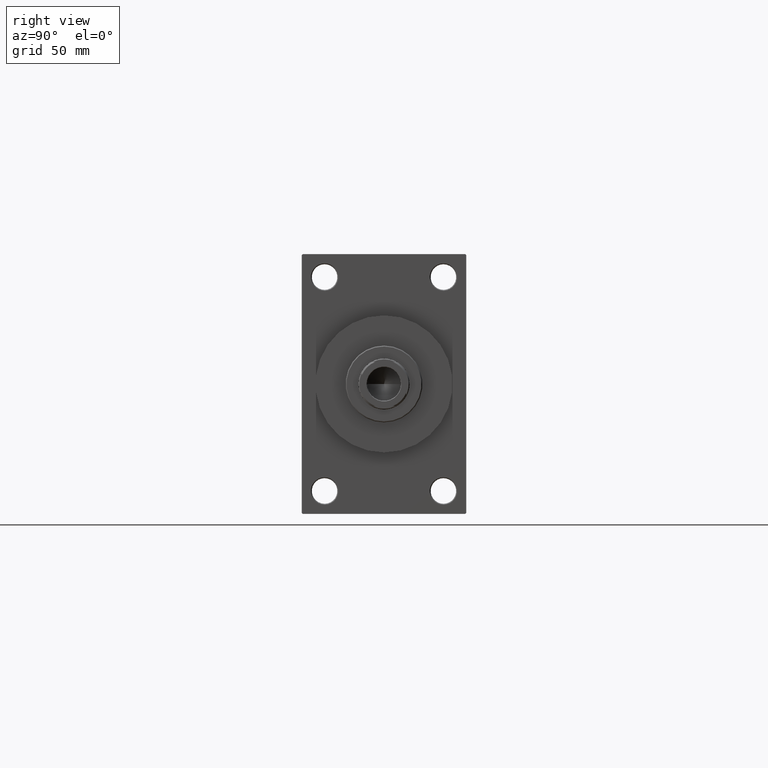
[diagram: clean part render]
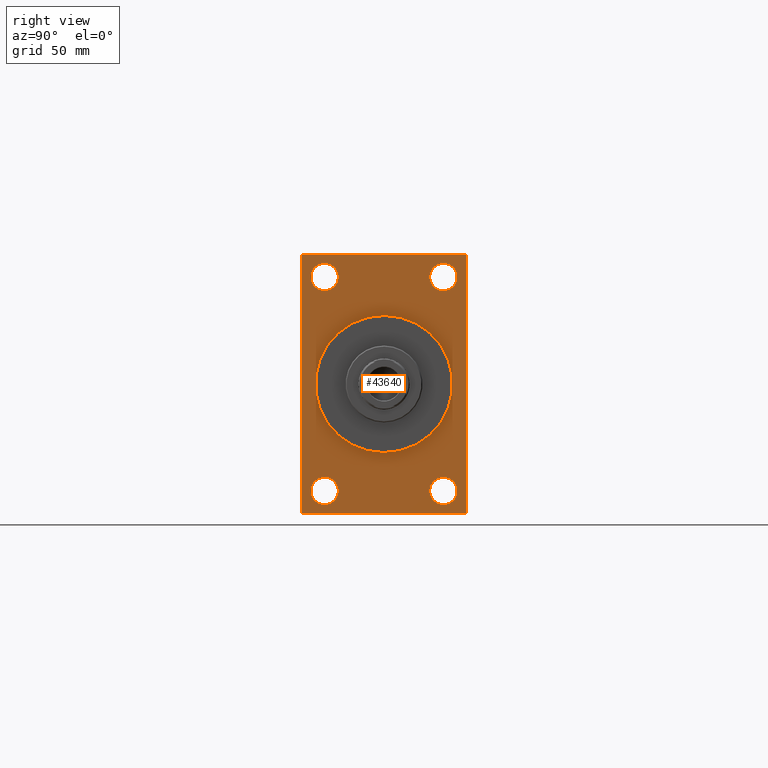
[diagram: same view with one face highlighted and labeled with its STEP entity id]
A machine part, right view. The second image highlights one B-rep face of the part: STEP entity #43640.
In plain terms, the highlighted planar face has unit normal (-1, 0, 0).
Its self-contained STEP definition (entity closure, byte-faithful):
#114 = LINE ( 'NONE', #28977, #6541 ) ;
#276 = EDGE_CURVE ( 'NONE', #22628, #3264, #12147, .T. ) ;
#327 = EDGE_CURVE ( 'NONE', #12307, #39386, #24061, .T. ) ;
#462 = VERTEX_POINT ( 'NONE', #21406 ) ;
#594 = EDGE_CURVE ( 'NONE', #1462, #31161, #26250, .T. ) ;
#1154 = DIRECTION ( 'NONE',  ( 0.000000000000000000, -4.886545002751570165E-17, -1.000000000000000000 ) ) ;
#1462 = VERTEX_POINT ( 'NONE', #43817 ) ;
#1562 = DIRECTION ( 'NONE',  ( 0.000000000000000000, 0.000000000000000000, 1.000000000000000000 ) ) ;
#1807 = DIRECTION ( 'NONE',  ( 0.000000000000000000, 0.000000000000000000, 1.000000000000000000 ) ) ;
#2076 = VECTOR ( 'NONE', #44276, 1000.000000000000114 ) ;
#2660 = ORIENTED_EDGE ( 'NONE', *, *, #16316, .F. ) ;
#2790 = CIRCLE ( 'NONE', #40940, 37.50000000000000711 ) ;
#3154 = CARTESIAN_POINT ( 'NONE',  ( 300.0000000000000000, 32.50000000000000711, -51.00000000000004263 ) ) ;
#3264 = VERTEX_POINT ( 'NONE', #17428 ) ;
#4082 = EDGE_CURVE ( 'NONE', #37341, #12307, #114, .T. ) ;
#4347 = VECTOR ( 'NONE', #44140, 1000.000000000000000 ) ;
#4591 = DIRECTION ( 'NONE',  ( -1.000000000000000000, 0.000000000000000000, -0.000000000000000000 ) ) ;
#4727 = CARTESIAN_POINT ( 'NONE',  ( 300.0000000000000000, 45.00000000000002132, 71.00000000000000000 ) ) ;
#4887 = AXIS2_PLACEMENT_3D ( 'NONE', #8737, #45253, #20184 ) ;
#5367 = DIRECTION ( 'NONE',  ( -1.000000000000000000, 0.000000000000000000, -0.000000000000000000 ) ) ;
#5567 = CARTESIAN_POINT ( 'NONE',  ( 300.0000000000000000, 4.592425496802575156E-15, -37.50000000000000711 ) ) ;
#6063 = AXIS2_PLACEMENT_3D ( 'NONE', #23980, #5367, #38539 ) ;
#6187 = EDGE_LOOP ( 'NONE', ( #27695, #7926 ) ) ;
#6541 = VECTOR ( 'NONE', #21572, 1000.000000000000000 ) ;
#6611 = LINE ( 'NONE', #24970, #16431 ) ;
#6812 = ORIENTED_EDGE ( 'NONE', *, *, #327, .T. ) ;
#7017 = CIRCLE ( 'NONE', #4887, 7.499999999999936939 ) ;
#7926 = ORIENTED_EDGE ( 'NONE', *, *, #22886, .T. ) ;
#7976 = AXIS2_PLACEMENT_3D ( 'NONE', #46439, #42843, #1807 ) ;
#8171 = ORIENTED_EDGE ( 'NONE', *, *, #19829, .T. ) ;
#8200 = CARTESIAN_POINT ( 'NONE',  ( 300.0000000000000000, -32.50000000000000000, -58.49999999999999289 ) ) ;
#8225 = EDGE_LOOP ( 'NONE', ( #8171, #23217 ) ) ;
#8226 = ORIENTED_EDGE ( 'NONE', *, *, #20480, .F. ) ;
#8357 = DIRECTION ( 'NONE',  ( 0.000000000000000000, 0.000000000000000000, -1.000000000000000000 ) ) ;
#8708 = VECTOR ( 'NONE', #21175, 999.9999999999998863 ) ;
#8737 = CARTESIAN_POINT ( 'NONE',  ( 300.0000000000000000, -32.50000000000000000, 58.50000000000000711 ) ) ;
#8937 = DIRECTION ( 'NONE',  ( -1.000000000000000000, 0.000000000000000000, -0.000000000000000000 ) ) ;
#9143 = DIRECTION ( 'NONE',  ( 0.000000000000000000, 0.000000000000000000, -1.000000000000000000 ) ) ;
#9213 = VERTEX_POINT ( 'NONE', #46187 ) ;
#9424 = DIRECTION ( 'NONE',  ( -1.000000000000000000, 0.000000000000000000, -0.000000000000000000 ) ) ;
#9610 = EDGE_CURVE ( 'NONE', #3264, #37341, #29556, .T. ) ;
#9939 = EDGE_LOOP ( 'NONE', ( #37092, #43776 ) ) ;
#10077 = EDGE_CURVE ( 'NONE', #18490, #34447, #40204, .T. ) ;
#10660 = AXIS2_PLACEMENT_3D ( 'NONE', #45898, #20589, #9143 ) ;
#10667 = DIRECTION ( 'NONE',  ( 0.000000000000000000, -0.7071067811865474617, 0.7071067811865474617 ) ) ;
#11073 = CARTESIAN_POINT ( 'NONE',  ( 300.0000000000000000, 32.50000000000000711, 65.99999999999994316 ) ) ;
#12017 = DIRECTION ( 'NONE',  ( -1.000000000000000000, 0.000000000000000000, -0.000000000000000000 ) ) ;
#12078 = ORIENTED_EDGE ( 'NONE', *, *, #14562, .T. ) ;
#12147 = LINE ( 'NONE', #41480, #30053 ) ;
#12153 = AXIS2_PLACEMENT_3D ( 'NONE', #45435, #12976, #19892 ) ;
#12307 = VERTEX_POINT ( 'NONE', #33581 ) ;
#12775 = DIRECTION ( 'NONE',  ( -1.000000000000000000, 0.000000000000000000, -0.000000000000000000 ) ) ;
#12800 = EDGE_LOOP ( 'NONE', ( #27537, #6812, #28981, #26819, #8226, #16269, #22996, #34393 ) ) ;
#12976 = DIRECTION ( 'NONE',  ( -1.000000000000000000, 0.000000000000000000, -0.000000000000000000 ) ) ;
#13538 = AXIS2_PLACEMENT_3D ( 'NONE', #31835, #9424, #46413 ) ;
#14562 = EDGE_CURVE ( 'NONE', #19178, #462, #43387, .T. ) ;
#15018 = CARTESIAN_POINT ( 'NONE',  ( 300.0000000000000000, -44.99999999999997158, 70.49999999999992895 ) ) ;
#15341 = DIRECTION ( 'NONE',  ( 0.000000000000000000, 0.000000000000000000, 1.000000000000000000 ) ) ;
#16269 = ORIENTED_EDGE ( 'NONE', *, *, #36958, .T. ) ;
#16316 = EDGE_CURVE ( 'NONE', #33042, #36755, #31224, .T. ) ;
#16431 = VECTOR ( 'NONE', #10667, 1000.000000000000114 ) ;
#17156 = VERTEX_POINT ( 'NONE', #45423 ) ;
#17428 = CARTESIAN_POINT ( 'NONE',  ( 300.0000000000000000, -44.49999999999989342, 70.99999999999998579 ) ) ;
#17717 = CIRCLE ( 'NONE', #38325, 7.499999999999951150 ) ;
#17984 = EDGE_CURVE ( 'NONE', #9213, #46507, #38894, .T. ) ;
#18490 = VERTEX_POINT ( 'NONE', #29561 ) ;
#19084 = LINE ( 'NONE', #23113, #29901 ) ;
#19178 = VERTEX_POINT ( 'NONE', #3154 ) ;
#19829 = EDGE_CURVE ( 'NONE', #24000, #23657, #32708, .T. ) ;
#19892 = DIRECTION ( 'NONE',  ( 0.000000000000000000, 0.000000000000000000, 1.000000000000000000 ) ) ;
#19907 = FACE_BOUND ( 'NONE', #25925, .T. ) ;
#20184 = DIRECTION ( 'NONE',  ( 0.000000000000000000, 0.000000000000000000, 1.000000000000000000 ) ) ;
#20480 = EDGE_CURVE ( 'NONE', #17156, #34447, #32890, .T. ) ;
#20589 = DIRECTION ( 'NONE',  ( 1.000000000000000000, 0.000000000000000000, 0.000000000000000000 ) ) ;
#20682 = CARTESIAN_POINT ( 'NONE',  ( 300.0000000000000000, -32.50000000000000000, -65.99999999999992895 ) ) ;
#20819 = AXIS2_PLACEMENT_3D ( 'NONE', #8200, #12017, #26564 ) ;
#21175 = DIRECTION ( 'NONE',  ( 0.000000000000000000, 0.7071067811865574537, -0.7071067811865376918 ) ) ;
#21406 = CARTESIAN_POINT ( 'NONE',  ( 300.0000000000000000, 32.50000000000000711, -65.99999999999994316 ) ) ;
#21572 = DIRECTION ( 'NONE',  ( 0.000000000000000000, 0.000000000000000000, -1.000000000000000000 ) ) ;
#21589 = CIRCLE ( 'NONE', #20819, 7.499999999999944045 ) ;
#21867 = ORIENTED_EDGE ( 'NONE', *, *, #30034, .T. ) ;
#22244 = CARTESIAN_POINT ( 'NONE',  ( 300.0000000000000000, 32.50000000000000711, -58.50000000000000000 ) ) ;
#22628 = VERTEX_POINT ( 'NONE', #31029 ) ;
#22886 = EDGE_CURVE ( 'NONE', #46507, #9213, #7017, .T. ) ;
#22996 = ORIENTED_EDGE ( 'NONE', *, *, #276, .T. ) ;
#23113 = CARTESIAN_POINT ( 'NONE',  ( 300.0000000000000000, 45.00000000000001421, -70.99999999999998579 ) ) ;
#23128 = DIRECTION ( 'NONE',  ( 1.000000000000000000, 0.000000000000000000, 0.000000000000000000 ) ) ;
#23217 = ORIENTED_EDGE ( 'NONE', *, *, #31345, .T. ) ;
#23340 = DIRECTION ( 'NONE',  ( 0.000000000000000000, -1.000000000000000000, -1.541976423090495387E-16 ) ) ;
#23483 = DIRECTION ( 'NONE',  ( -0.000000000000000000, 0.000000000000000000, 1.000000000000000000 ) ) ;
#23657 = VERTEX_POINT ( 'NONE', #25296 ) ;
#23980 = CARTESIAN_POINT ( 'NONE',  ( 300.0000000000000000, 32.50000000000000711, -58.50000000000000000 ) ) ;
#24000 = VERTEX_POINT ( 'NONE', #20682 ) ;
#24061 = LINE ( 'NONE', #42679, #8708 ) ;
#24970 = CARTESIAN_POINT ( 'NONE',  ( 300.0000000000000000, 44.49999999999996447, 71.00000000000000000 ) ) ;
#25296 = CARTESIAN_POINT ( 'NONE',  ( 300.0000000000000000, -32.50000000000000000, -51.00000000000003553 ) ) ;
#25925 = EDGE_LOOP ( 'NONE', ( #45016, #2660 ) ) ;
#25955 = EDGE_CURVE ( 'NONE', #18490, #39386, #19084, .T. ) ;
#26014 = CARTESIAN_POINT ( 'NONE',  ( 300.0000000000000000, 0.000000000000000000, 0.000000000000000000 ) ) ;
#26250 = CIRCLE ( 'NONE', #7976, 7.499999999999936939 ) ;
#26564 = DIRECTION ( 'NONE',  ( 0.000000000000000000, 0.000000000000000000, 1.000000000000000000 ) ) ;
#26819 = ORIENTED_EDGE ( 'NONE', *, *, #10077, .T. ) ;
#27066 = CARTESIAN_POINT ( 'NONE',  ( 300.0000000000000000, 0.000000000000000000, 0.000000000000000000 ) ) ;
#27188 = AXIS2_PLACEMENT_3D ( 'NONE', #27066, #8937, #23483 ) ;
#27537 = ORIENTED_EDGE ( 'NONE', *, *, #4082, .T. ) ;
#27695 = ORIENTED_EDGE ( 'NONE', *, *, #17984, .T. ) ;
#28977 = CARTESIAN_POINT ( 'NONE',  ( 300.0000000000000000, -44.99999999999997158, 70.99999999999998579 ) ) ;
#28981 = ORIENTED_EDGE ( 'NONE', *, *, #25955, .F. ) ;
#29389 = CARTESIAN_POINT ( 'NONE',  ( 300.0000000000000000, -44.49999999999988631, -71.00000000000000000 ) ) ;
#29556 = LINE ( 'NONE', #15018, #4347 ) ;
#29561 = CARTESIAN_POINT ( 'NONE',  ( 300.0000000000000000, 44.49999999999995737, -70.99999999999998579 ) ) ;
#29901 = VECTOR ( 'NONE', #44156, 1000.000000000000000 ) ;
#29928 = FACE_BOUND ( 'NONE', #9939, .T. ) ;
#30034 = EDGE_CURVE ( 'NONE', #462, #19178, #17717, .T. ) ;
#30053 = VECTOR ( 'NONE', #23340, 1000.000000000000000 ) ;
#30217 = CARTESIAN_POINT ( 'NONE',  ( 300.0000000000000000, -32.50000000000000000, 65.99999999999994316 ) ) ;
#30629 = FACE_BOUND ( 'NONE', #6187, .T. ) ;
#31029 = CARTESIAN_POINT ( 'NONE',  ( 300.0000000000000000, 44.49999999999996447, 71.00000000000000000 ) ) ;
#31161 = VERTEX_POINT ( 'NONE', #11073 ) ;
#31224 = CIRCLE ( 'NONE', #10660, 37.50000000000000711 ) ;
#31345 = EDGE_CURVE ( 'NONE', #23657, #24000, #21589, .T. ) ;
#31835 = CARTESIAN_POINT ( 'NONE',  ( 300.0000000000000000, 32.50000000000000711, 58.50000000000000711 ) ) ;
#31837 = CARTESIAN_POINT ( 'NONE',  ( 300.0000000000000000, 0.000000000000000000, 37.50000000000000711 ) ) ;
#31969 = VECTOR ( 'NONE', #1154, 1000.000000000000000 ) ;
#32708 = CIRCLE ( 'NONE', #12153, 7.499999999999944045 ) ;
#32890 = LINE ( 'NONE', #4727, #31969 ) ;
#33042 = VERTEX_POINT ( 'NONE', #5567 ) ;
#33527 = FACE_BOUND ( 'NONE', #8225, .T. ) ;
#33581 = CARTESIAN_POINT ( 'NONE',  ( 300.0000000000000000, -44.99999999999997158, -70.49999999999995737 ) ) ;
#34091 = CIRCLE ( 'NONE', #13538, 7.499999999999936939 ) ;
#34393 = ORIENTED_EDGE ( 'NONE', *, *, #9610, .T. ) ;
#34447 = VERTEX_POINT ( 'NONE', #41229 ) ;
#36755 = VERTEX_POINT ( 'NONE', #31837 ) ;
#36958 = EDGE_CURVE ( 'NONE', #17156, #22628, #6611, .T. ) ;
#37092 = ORIENTED_EDGE ( 'NONE', *, *, #594, .T. ) ;
#37341 = VERTEX_POINT ( 'NONE', #47123 ) ;
#38325 = AXIS2_PLACEMENT_3D ( 'NONE', #22244, #4591, #15341 ) ;
#38539 = DIRECTION ( 'NONE',  ( 0.000000000000000000, 0.000000000000000000, 1.000000000000000000 ) ) ;
#38894 = CIRCLE ( 'NONE', #42716, 7.499999999999936939 ) ;
#39386 = VERTEX_POINT ( 'NONE', #29389 ) ;
#40204 = LINE ( 'NONE', #44743, #2076 ) ;
#40940 = AXIS2_PLACEMENT_3D ( 'NONE', #26014, #23128, #8357 ) ;
#41229 = CARTESIAN_POINT ( 'NONE',  ( 300.0000000000000000, 45.00000000000001421, -70.49999999999991473 ) ) ;
#41383 = FACE_OUTER_BOUND ( 'NONE', #12800, .T. ) ;
#41480 = CARTESIAN_POINT ( 'NONE',  ( 300.0000000000000000, 45.00000000000002132, 71.00000000000000000 ) ) ;
#41643 = CARTESIAN_POINT ( 'NONE',  ( 300.0000000000000000, -32.50000000000000000, 58.50000000000000711 ) ) ;
#41924 = EDGE_CURVE ( 'NONE', #31161, #1462, #34091, .T. ) ;
#42679 = CARTESIAN_POINT ( 'NONE',  ( 300.0000000000000000, -44.49999999999991473, -71.00000000000000000 ) ) ;
#42716 = AXIS2_PLACEMENT_3D ( 'NONE', #41643, #12775, #1562 ) ;
#42843 = DIRECTION ( 'NONE',  ( -1.000000000000000000, 0.000000000000000000, -0.000000000000000000 ) ) ;
#43387 = CIRCLE ( 'NONE', #6063, 7.499999999999951150 ) ;
#43640 = ADVANCED_FACE ( 'NONE', ( #30629, #33527, #45213, #29928, #19907, #41383 ), #44518, .F. ) ;
#43776 = ORIENTED_EDGE ( 'NONE', *, *, #41924, .T. ) ;
#43817 = CARTESIAN_POINT ( 'NONE',  ( 300.0000000000000000, 32.50000000000000711, 51.00000000000007105 ) ) ;
#44140 = DIRECTION ( 'NONE',  ( -0.000000000000000000, -0.7071067811865426878, -0.7071067811865524577 ) ) ;
#44156 = DIRECTION ( 'NONE',  ( 0.000000000000000000, -1.000000000000000000, -1.541976423090495633E-16 ) ) ;
#44276 = DIRECTION ( 'NONE',  ( -0.000000000000000000, 0.7071067811865376918, 0.7071067811865573427 ) ) ;
#44293 = EDGE_CURVE ( 'NONE', #36755, #33042, #2790, .T. ) ;
#44518 = PLANE ( 'NONE',  #27188 ) ;
#44743 = CARTESIAN_POINT ( 'NONE',  ( 300.0000000000000000, 45.00000000000001421, -70.49999999999991473 ) ) ;
#45016 = ORIENTED_EDGE ( 'NONE', *, *, #44293, .F. ) ;
#45213 = FACE_BOUND ( 'NONE', #46892, .T. ) ;
#45253 = DIRECTION ( 'NONE',  ( -1.000000000000000000, 0.000000000000000000, -0.000000000000000000 ) ) ;
#45423 = CARTESIAN_POINT ( 'NONE',  ( 300.0000000000000000, 45.00000000000002132, 70.49999999999994316 ) ) ;
#45435 = CARTESIAN_POINT ( 'NONE',  ( 300.0000000000000000, -32.50000000000000000, -58.49999999999999289 ) ) ;
#45898 = CARTESIAN_POINT ( 'NONE',  ( 300.0000000000000000, 0.000000000000000000, 0.000000000000000000 ) ) ;
#46187 = CARTESIAN_POINT ( 'NONE',  ( 300.0000000000000000, -32.50000000000000000, 51.00000000000007105 ) ) ;
#46413 = DIRECTION ( 'NONE',  ( 0.000000000000000000, 0.000000000000000000, 1.000000000000000000 ) ) ;
#46439 = CARTESIAN_POINT ( 'NONE',  ( 300.0000000000000000, 32.50000000000000711, 58.50000000000000711 ) ) ;
#46507 = VERTEX_POINT ( 'NONE', #30217 ) ;
#46892 = EDGE_LOOP ( 'NONE', ( #21867, #12078 ) ) ;
#47123 = CARTESIAN_POINT ( 'NONE',  ( 300.0000000000000000, -44.99999999999997158, 70.49999999999992895 ) ) ;